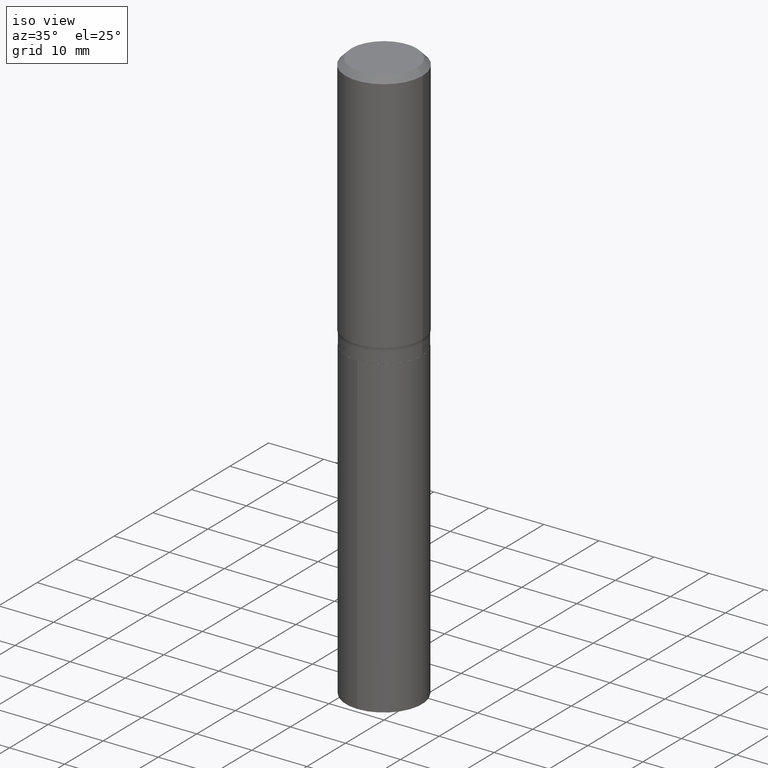
[diagram: clean part render]
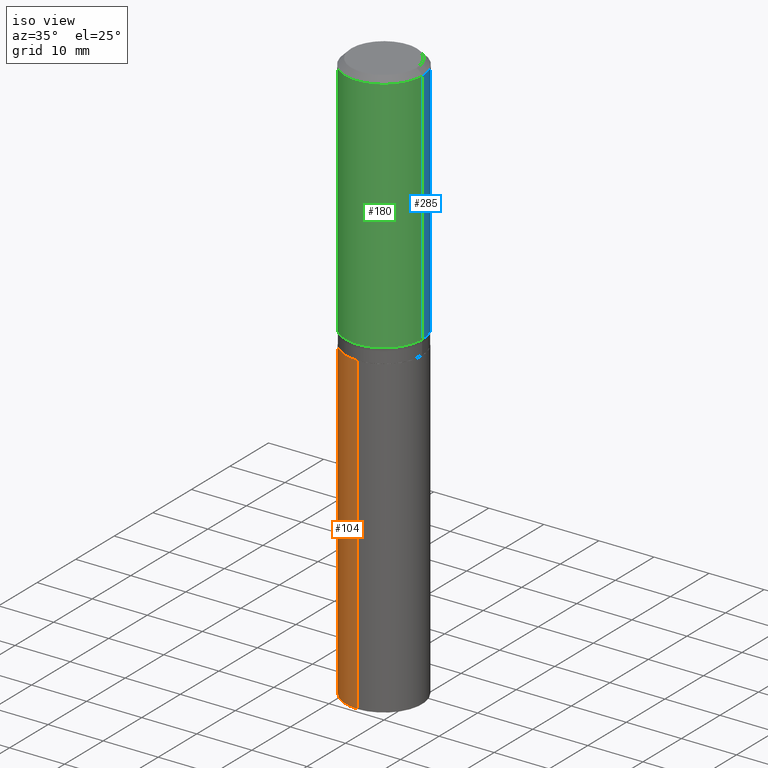
[diagram: same view with three faces highlighted in distinct colors, each labeled with its STEP entity id]
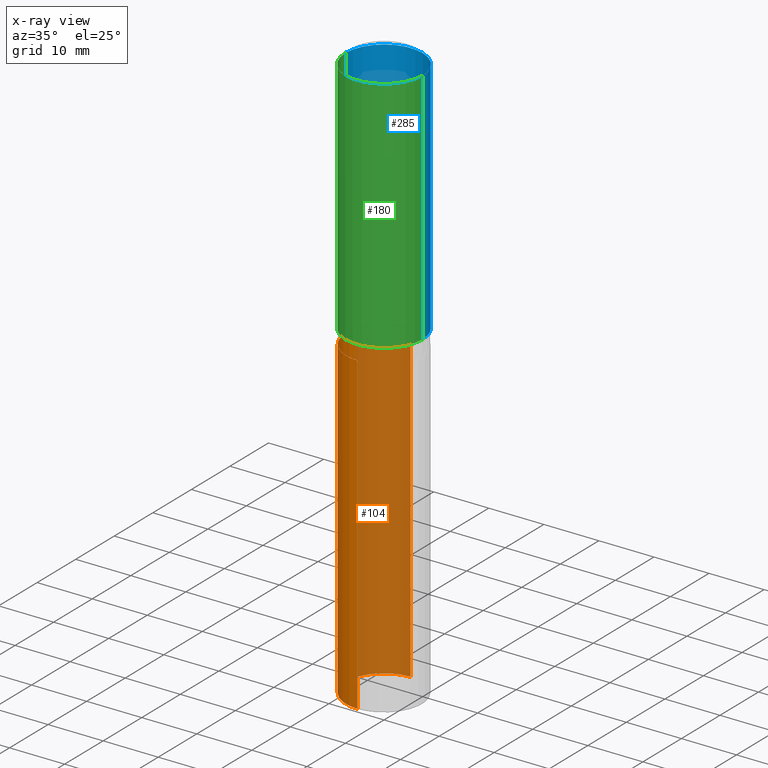
[diagram: x-ray of the same camera — body ghosted, the three highlighted faces saturated]
A machine part, iso view with three faces highlighted in distinct colors.
The next image is the same camera in x-ray (body ghosted, the three faces saturated) — at least one of them is partly hidden behind the body in this view.
Their STEP definitions:

[orange] entity #104 — the highlighted cylindrical surface (partial cylindrical patch) has radius 6.8999 mm, axis along (-0, 0, 1).
#7 = DIRECTION ( 'NONE',  ( -2.445706889125734915E-29, 3.491140390521369310E-15, 1.000000000000000000 ) ) ;
#21 = FACE_OUTER_BOUND ( 'NONE', #43, .T. ) ;
#39 = DIRECTION ( 'NONE',  ( -6.982962677686265133E-15, -1.000000000000000000, 4.022599659362065925E-15 ) ) ;
#43 = EDGE_LOOP ( 'NONE', ( #120, #148, #144, #384 ) ) ;
#68 = CARTESIAN_POINT ( 'NONE',  ( 1.930189341692412359E-15, 0.2716499999999935633, -1.850400000000001155 ) ) ;
#74 = CARTESIAN_POINT ( 'NONE',  ( 1.003391885295695671E-28, -1.432424324015218274E-14, -4.102846275751880434 ) ) ;
#79 = EDGE_CURVE ( 'NONE', #231, #88, #269, .T. ) ;
#88 = VERTEX_POINT ( 'NONE', #362 ) ;
#93 = CYLINDRICAL_SURFACE ( 'NONE', #306, 0.2716500000000000026 ) ;
#104 = ADVANCED_FACE ( 'NONE', ( #21 ), #93, .T. ) ;
#113 = VECTOR ( 'NONE', #482, 39.37007874015748143 ) ;
#120 = ORIENTED_EDGE ( 'NONE', *, *, #268, .F. ) ;
#134 = DIRECTION ( 'NONE',  ( -6.982962677686265133E-15, -1.000000000000000000, 3.016949744521549444E-15 ) ) ;
#136 = LINE ( 'NONE', #216, #113 ) ;
#144 = ORIENTED_EDGE ( 'NONE', *, *, #266, .T. ) ;
#148 = ORIENTED_EDGE ( 'NONE', *, *, #456, .T. ) ;
#159 = CIRCLE ( 'NONE', #201, 0.2716500000000000026 ) ;
#201 = AXIS2_PLACEMENT_3D ( 'NONE', #74, #7, #39 ) ;
#202 = CARTESIAN_POINT ( 'NONE',  ( 4.525095478964977954E-29, -6.460637069395358365E-15, -1.850400000000000489 ) ) ;
#207 = AXIS2_PLACEMENT_3D ( 'NONE', #402, #288, #394 ) ;
#216 = CARTESIAN_POINT ( 'NONE',  ( 1.930189341692357138E-15, 0.2716499999999935633, -1.850400000000001377 ) ) ;
#224 = LINE ( 'NONE', #439, #297 ) ;
#231 = VERTEX_POINT ( 'NONE', #68 ) ;
#251 = CARTESIAN_POINT ( 'NONE',  ( 1.930189341692412753E-15, 0.2716499999999857917, -4.102846275751881322 ) ) ;
#252 = VERTEX_POINT ( 'NONE', #251 ) ;
#266 = EDGE_CURVE ( 'NONE', #370, #88, #224, .T. ) ;
#268 = EDGE_CURVE ( 'NONE', #252, #231, #136, .T. ) ;
#269 = CIRCLE ( 'NONE', #207, 0.2716500000000000026 ) ;
#288 = DIRECTION ( 'NONE',  ( -2.445706889125734915E-29, 3.491140390521369310E-15, 1.000000000000000000 ) ) ;
#297 = VECTOR ( 'NONE', #335, 39.37007874015748143 ) ;
#306 = AXIS2_PLACEMENT_3D ( 'NONE', #202, #431, #134 ) ;
#335 = DIRECTION ( 'NONE',  ( -2.445706889125734915E-29, 3.491140390521369704E-15, 1.000000000000000000 ) ) ;
#362 = CARTESIAN_POINT ( 'NONE',  ( -1.896921811393429049E-15, -0.2716500000000064419, -1.850399999999999379 ) ) ;
#370 = VERTEX_POINT ( 'NONE', #405 ) ;
#384 = ORIENTED_EDGE ( 'NONE', *, *, #79, .F. ) ;
#394 = DIRECTION ( 'NONE',  ( -6.982962677686265133E-15, -1.000000000000000000, 3.016949744521549444E-15 ) ) ;
#402 = CARTESIAN_POINT ( 'NONE',  ( 4.525095478964977394E-29, -6.460637069395357576E-15, -1.850400000000000267 ) ) ;
#405 = CARTESIAN_POINT ( 'NONE',  ( -1.896921811393374223E-15, -0.2716500000000143800, -4.102846275751879546 ) ) ;
#431 = DIRECTION ( 'NONE',  ( -2.445706889125734915E-29, 3.491140390521369310E-15, 1.000000000000000000 ) ) ;
#439 = CARTESIAN_POINT ( 'NONE',  ( -1.896921811393429049E-15, -0.2716500000000064419, -1.850399999999999823 ) ) ;
#456 = EDGE_CURVE ( 'NONE', #252, #370, #159, .T. ) ;
#482 = DIRECTION ( 'NONE',  ( -2.445706889125734915E-29, 3.491140390521369704E-15, 1.000000000000000000 ) ) ;

[blue] entity #285 — the highlighted cylindrical surface (partial cylindrical patch) has radius 7.0002 mm, axis along (-0, 0, 1).
#9 = VECTOR ( 'NONE', #127, 39.37007874015748143 ) ;
#10 = VECTOR ( 'NONE', #36, 39.37007874015748143 ) ;
#16 = CARTESIAN_POINT ( 'NONE',  ( -0.2756000000000002892, -4.132259510290183971E-15, -1.744392909189378837 ) ) ;
#22 = DIRECTION ( 'NONE',  ( -2.445468806185136597E-29, 3.491481338843145583E-15, 1.000000000000000000 ) ) ;
#35 = ORIENTED_EDGE ( 'NONE', *, *, #313, .F. ) ;
#36 = DIRECTION ( 'NONE',  ( -2.445468806185136877E-29, 3.491481338843145188E-15, 1.000000000000000000 ) ) ;
#50 = CARTESIAN_POINT ( 'NONE',  ( 0.2756000000000000116, -2.068842352518111732E-15, -0.04134000000000025155 ) ) ;
#51 = EDGE_CURVE ( 'NONE', #221, #198, #420, .T. ) ;
#80 = CARTESIAN_POINT ( 'NONE',  ( -0.2756000000000001227, 1.958255779754836984E-15, -1.355658510874252567E-29 ) ) ;
#83 = CIRCLE ( 'NONE', #194, 0.2756000000000000116 ) ;
#96 = AXIS2_PLACEMENT_3D ( 'NONE', #318, #319, #473 ) ;
#110 = ORIENTED_EDGE ( 'NONE', *, *, #51, .T. ) ;
#127 = DIRECTION ( 'NONE',  ( -2.445468806185136877E-29, 3.491481338843145188E-15, 1.000000000000000000 ) ) ;
#156 = EDGE_LOOP ( 'NONE', ( #446, #110, #35, #161 ) ) ;
#161 = ORIENTED_EDGE ( 'NONE', *, *, #467, .F. ) ;
#176 = DIRECTION ( 'NONE',  ( 1.000000000000000000, -6.982962677686267499E-15, 4.876176775795935793E-29 ) ) ;
#185 = LINE ( 'NONE', #419, #10 ) ;
#187 = EDGE_CURVE ( 'NONE', #233, #221, #261, .T. ) ;
#194 = AXIS2_PLACEMENT_3D ( 'NONE', #294, #301, #475 ) ;
#196 = VERTEX_POINT ( 'NONE', #50 ) ;
#198 = VERTEX_POINT ( 'NONE', #204 ) ;
#204 = CARTESIAN_POINT ( 'NONE',  ( -0.2756000000000000116, -1.159170784541562277E-15, -0.04134000000000025155 ) ) ;
#221 = VERTEX_POINT ( 'NONE', #16 ) ;
#233 = VERTEX_POINT ( 'NONE', #477 ) ;
#257 = CARTESIAN_POINT ( 'NONE',  ( 0.000000000000000000, 0.000000000000000000, 0.000000000000000000 ) ) ;
#261 = CIRCLE ( 'NONE', #96, 0.2756000000000002337 ) ;
#271 = AXIS2_PLACEMENT_3D ( 'NONE', #257, #22, #176 ) ;
#285 = ADVANCED_FACE ( 'NONE', ( #444 ), #487, .T. ) ;
#294 = CARTESIAN_POINT ( 'NONE',  ( 1.010956804476941697E-30, -1.443378385477765070E-16, -0.04134000000000025155 ) ) ;
#301 = DIRECTION ( 'NONE',  ( -2.445468806185136597E-29, 3.491481338843145583E-15, 1.000000000000000000 ) ) ;
#313 = EDGE_CURVE ( 'NONE', #196, #198, #83, .T. ) ;
#318 = CARTESIAN_POINT ( 'NONE',  ( 4.265858445153167625E-29, -6.090515290045022138E-15, -1.744392909189378837 ) ) ;
#319 = DIRECTION ( 'NONE',  ( -2.445468806185136597E-29, 3.491481338843145583E-15, 1.000000000000000000 ) ) ;
#419 = CARTESIAN_POINT ( 'NONE',  ( 0.2756000000000001227, -1.924504513970336137E-15, 1.343874319409360548E-29 ) ) ;
#420 = LINE ( 'NONE', #80, #9 ) ;
#444 = FACE_OUTER_BOUND ( 'NONE', #156, .T. ) ;
#446 = ORIENTED_EDGE ( 'NONE', *, *, #187, .T. ) ;
#467 = EDGE_CURVE ( 'NONE', #233, #196, #185, .T. ) ;
#473 = DIRECTION ( 'NONE',  ( 1.000000000000000000, -6.982962677686267499E-15, 0.000000000000000000 ) ) ;
#475 = DIRECTION ( 'NONE',  ( 1.000000000000000000, -6.982962677686267499E-15, 0.000000000000000000 ) ) ;
#477 = CARTESIAN_POINT ( 'NONE',  ( 0.2756000000000002892, -8.015019804015359459E-15, -1.744392909189378837 ) ) ;
#487 = CYLINDRICAL_SURFACE ( 'NONE', #271, 0.2756000000000001227 ) ;

[green] entity #180 — the highlighted cylindrical surface (partial cylindrical patch) has radius 7.0002 mm, axis along (-0, 0, 1).
#3 = DIRECTION ( 'NONE',  ( -2.445468806185136597E-29, 3.491481338843145583E-15, 1.000000000000000000 ) ) ;
#9 = VECTOR ( 'NONE', #127, 39.37007874015748143 ) ;
#10 = VECTOR ( 'NONE', #36, 39.37007874015748143 ) ;
#16 = CARTESIAN_POINT ( 'NONE',  ( -0.2756000000000002892, -4.132259510290183971E-15, -1.744392909189378837 ) ) ;
#17 = EDGE_CURVE ( 'NONE', #198, #196, #323, .T. ) ;
#25 = ORIENTED_EDGE ( 'NONE', *, *, #276, .T. ) ;
#30 = DIRECTION ( 'NONE',  ( 1.000000000000000000, -6.982962677686267499E-15, 0.000000000000000000 ) ) ;
#36 = DIRECTION ( 'NONE',  ( -2.445468806185136877E-29, 3.491481338843145188E-15, 1.000000000000000000 ) ) ;
#37 = CARTESIAN_POINT ( 'NONE',  ( 1.010956804476941697E-30, -1.443378385477765070E-16, -0.04134000000000025155 ) ) ;
#50 = CARTESIAN_POINT ( 'NONE',  ( 0.2756000000000000116, -2.068842352518111732E-15, -0.04134000000000025155 ) ) ;
#51 = EDGE_CURVE ( 'NONE', #221, #198, #420, .T. ) ;
#80 = CARTESIAN_POINT ( 'NONE',  ( -0.2756000000000001227, 1.958255779754836984E-15, -1.355658510874252567E-29 ) ) ;
#86 = DIRECTION ( 'NONE',  ( 1.000000000000000000, -6.982962677686267499E-15, 0.000000000000000000 ) ) ;
#127 = DIRECTION ( 'NONE',  ( -2.445468806185136877E-29, 3.491481338843145188E-15, 1.000000000000000000 ) ) ;
#142 = CARTESIAN_POINT ( 'NONE',  ( 4.265858445153167625E-29, -6.090515290045022138E-15, -1.744392909189378837 ) ) ;
#143 = CIRCLE ( 'NONE', #347, 0.2756000000000002337 ) ;
#163 = FACE_OUTER_BOUND ( 'NONE', #219, .T. ) ;
#165 = DIRECTION ( 'NONE',  ( -2.445468806185136597E-29, 3.491481338843145583E-15, 1.000000000000000000 ) ) ;
#180 = ADVANCED_FACE ( 'NONE', ( #163 ), #325, .T. ) ;
#185 = LINE ( 'NONE', #419, #10 ) ;
#196 = VERTEX_POINT ( 'NONE', #50 ) ;
#198 = VERTEX_POINT ( 'NONE', #204 ) ;
#204 = CARTESIAN_POINT ( 'NONE',  ( -0.2756000000000000116, -1.159170784541562277E-15, -0.04134000000000025155 ) ) ;
#219 = EDGE_LOOP ( 'NONE', ( #302, #25, #418, #354 ) ) ;
#221 = VERTEX_POINT ( 'NONE', #16 ) ;
#233 = VERTEX_POINT ( 'NONE', #477 ) ;
#276 = EDGE_CURVE ( 'NONE', #221, #233, #143, .T. ) ;
#286 = CARTESIAN_POINT ( 'NONE',  ( 0.000000000000000000, 0.000000000000000000, 0.000000000000000000 ) ) ;
#298 = DIRECTION ( 'NONE',  ( -2.445468806185136597E-29, 3.491481338843145583E-15, 1.000000000000000000 ) ) ;
#302 = ORIENTED_EDGE ( 'NONE', *, *, #51, .F. ) ;
#323 = CIRCLE ( 'NONE', #371, 0.2756000000000000116 ) ;
#325 = CYLINDRICAL_SURFACE ( 'NONE', #355, 0.2756000000000001227 ) ;
#347 = AXIS2_PLACEMENT_3D ( 'NONE', #142, #298, #30 ) ;
#354 = ORIENTED_EDGE ( 'NONE', *, *, #17, .F. ) ;
#355 = AXIS2_PLACEMENT_3D ( 'NONE', #286, #165, #363 ) ;
#363 = DIRECTION ( 'NONE',  ( 1.000000000000000000, -6.982962677686267499E-15, 4.876176775795935793E-29 ) ) ;
#371 = AXIS2_PLACEMENT_3D ( 'NONE', #37, #3, #86 ) ;
#418 = ORIENTED_EDGE ( 'NONE', *, *, #467, .T. ) ;
#419 = CARTESIAN_POINT ( 'NONE',  ( 0.2756000000000001227, -1.924504513970336137E-15, 1.343874319409360548E-29 ) ) ;
#420 = LINE ( 'NONE', #80, #9 ) ;
#467 = EDGE_CURVE ( 'NONE', #233, #196, #185, .T. ) ;
#477 = CARTESIAN_POINT ( 'NONE',  ( 0.2756000000000002892, -8.015019804015359459E-15, -1.744392909189378837 ) ) ;